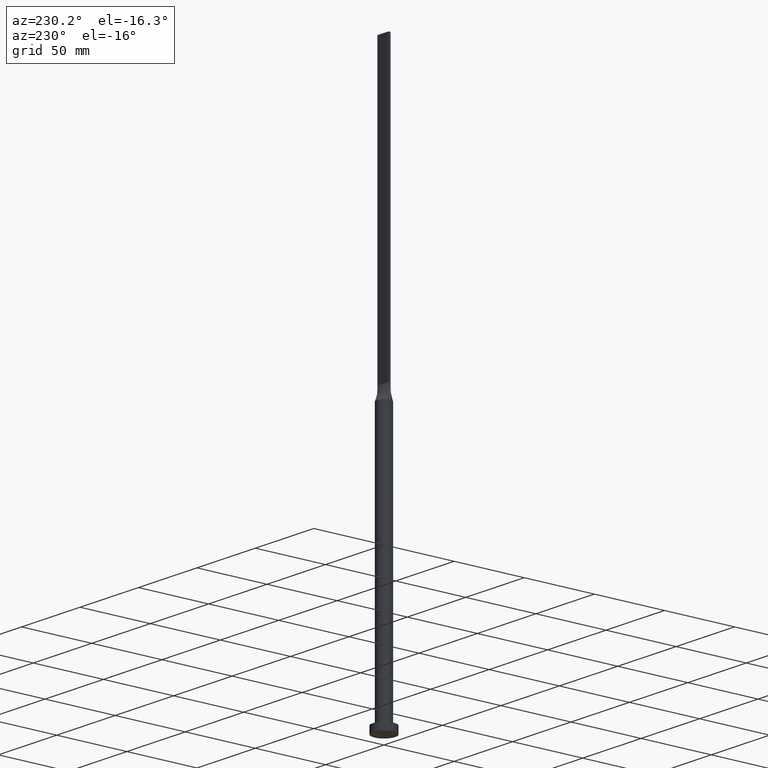
[diagram: clean part render]
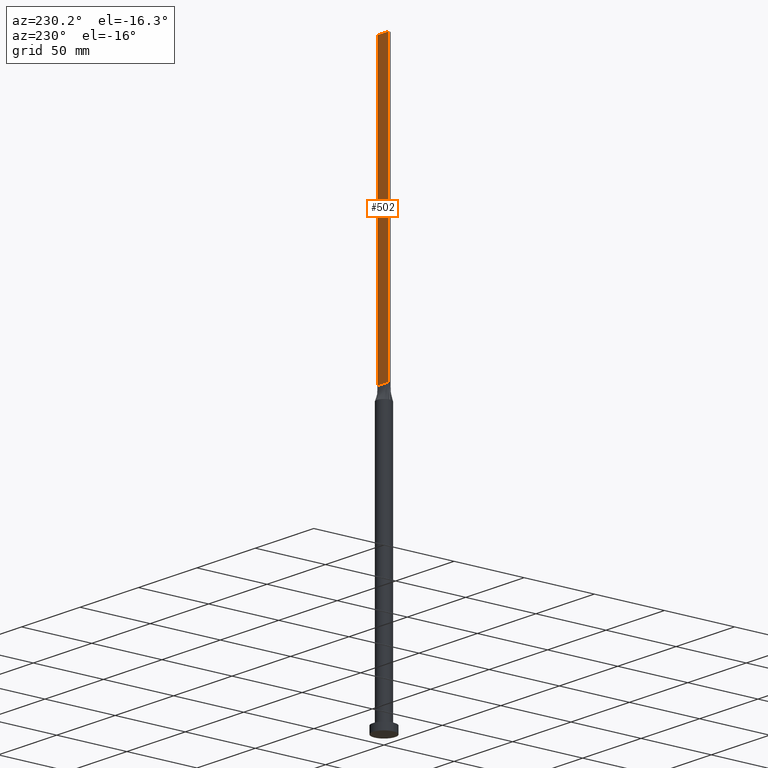
[diagram: same view with one face highlighted and labeled with its STEP entity id]
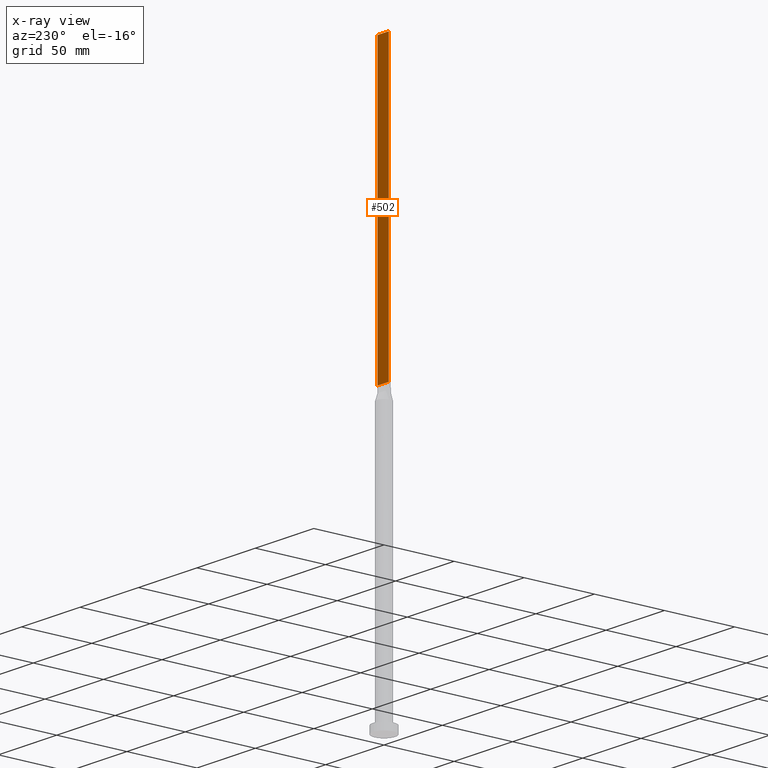
[diagram: x-ray of the same camera — body ghosted, the highlighted face saturated]
A machine part, auxiliary view. The second image highlights one B-rep face of the part: STEP entity #502.
The next image is the same camera in x-ray: the body ghosted, the highlighted face saturated — about 0% of this face is hidden behind the body in this view.
In plain terms, the highlighted planar face has unit normal (0, -1, 0).
Its self-contained STEP definition (entity closure, byte-faithful):
#12 = CARTESIAN_POINT ( 'NONE',  ( 4.750000000000000000, 0.7500000000000002220, 400.0000000000000000 ) ) ;
#15 = CARTESIAN_POINT ( 'NONE',  ( -4.750000000000000000, 0.7500000000000002220, 400.0000000000000000 ) ) ;
#48 = DIRECTION ( 'NONE',  ( -0.000000000000000000, -0.000000000000000000, -1.000000000000000000 ) ) ;
#74 = CARTESIAN_POINT ( 'NONE',  ( 4.750000000000000000, 0.7500000000000002220, 400.0000000000000000 ) ) ;
#90 = CARTESIAN_POINT ( 'NONE',  ( 4.750000000000000000, 0.7500000000000002220, 400.0000000000000000 ) ) ;
#108 = LINE ( 'NONE', #318, #554 ) ;
#141 = CARTESIAN_POINT ( 'NONE',  ( -4.750000000000000000, 0.7500000000000002220, 200.0000000000000000 ) ) ;
#151 = EDGE_CURVE ( 'NONE', #284, #492, #108, .T. ) ;
#200 = EDGE_CURVE ( 'NONE', #614, #492, #426, .T. ) ;
#231 = VERTEX_POINT ( 'NONE', #74 ) ;
#251 = LINE ( 'NONE', #579, #287 ) ;
#280 = PLANE ( 'NONE',  #603 ) ;
#284 = VERTEX_POINT ( 'NONE', #15 ) ;
#285 = DIRECTION ( 'NONE',  ( 0.000000000000000000, -0.000000000000000000, -1.000000000000000000 ) ) ;
#287 = VECTOR ( 'NONE', #48, 1000.000000000000000 ) ;
#290 = DIRECTION ( 'NONE',  ( 0.000000000000000000, -1.000000000000000000, 0.000000000000000000 ) ) ;
#300 = ORIENTED_EDGE ( 'NONE', *, *, #384, .F. ) ;
#305 = DIRECTION ( 'NONE',  ( -1.000000000000000000, 0.000000000000000000, 0.000000000000000000 ) ) ;
#318 = CARTESIAN_POINT ( 'NONE',  ( -4.750000000000000000, 0.7500000000000002220, 400.0000000000000000 ) ) ;
#359 = LINE ( 'NONE', #12, #450 ) ;
#367 = VECTOR ( 'NONE', #432, 1000.000000000000000 ) ;
#384 = EDGE_CURVE ( 'NONE', #231, #284, #359, .T. ) ;
#426 = LINE ( 'NONE', #477, #367 ) ;
#428 = ORIENTED_EDGE ( 'NONE', *, *, #151, .F. ) ;
#430 = ORIENTED_EDGE ( 'NONE', *, *, #494, .T. ) ;
#432 = DIRECTION ( 'NONE',  ( -1.000000000000000000, -0.000000000000000000, -0.000000000000000000 ) ) ;
#446 = FACE_OUTER_BOUND ( 'NONE', #534, .T. ) ;
#450 = VECTOR ( 'NONE', #305, 1000.000000000000000 ) ;
#477 = CARTESIAN_POINT ( 'NONE',  ( -4.750000000000000000, 0.7500000000000002220, 200.0000000000000000 ) ) ;
#492 = VERTEX_POINT ( 'NONE', #141 ) ;
#494 = EDGE_CURVE ( 'NONE', #231, #614, #251, .T. ) ;
#502 = ADVANCED_FACE ( 'NONE', ( #446 ), #280, .F. ) ;
#507 = DIRECTION ( 'NONE',  ( -0.000000000000000000, -0.000000000000000000, -1.000000000000000000 ) ) ;
#534 = EDGE_LOOP ( 'NONE', ( #576, #428, #300, #430 ) ) ;
#538 = CARTESIAN_POINT ( 'NONE',  ( 4.750000000000000000, 0.7500000000000002220, 200.0000000000000000 ) ) ;
#554 = VECTOR ( 'NONE', #507, 1000.000000000000000 ) ;
#576 = ORIENTED_EDGE ( 'NONE', *, *, #200, .T. ) ;
#579 = CARTESIAN_POINT ( 'NONE',  ( 4.750000000000000000, 0.7500000000000002220, 400.0000000000000000 ) ) ;
#603 = AXIS2_PLACEMENT_3D ( 'NONE', #90, #290, #285 ) ;
#614 = VERTEX_POINT ( 'NONE', #538 ) ;